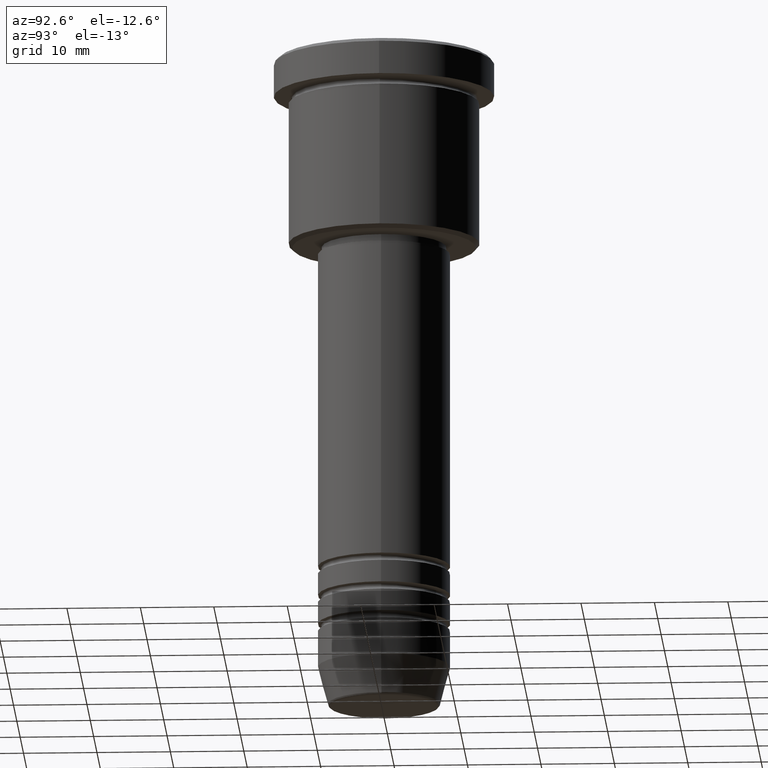
[diagram: clean part render]
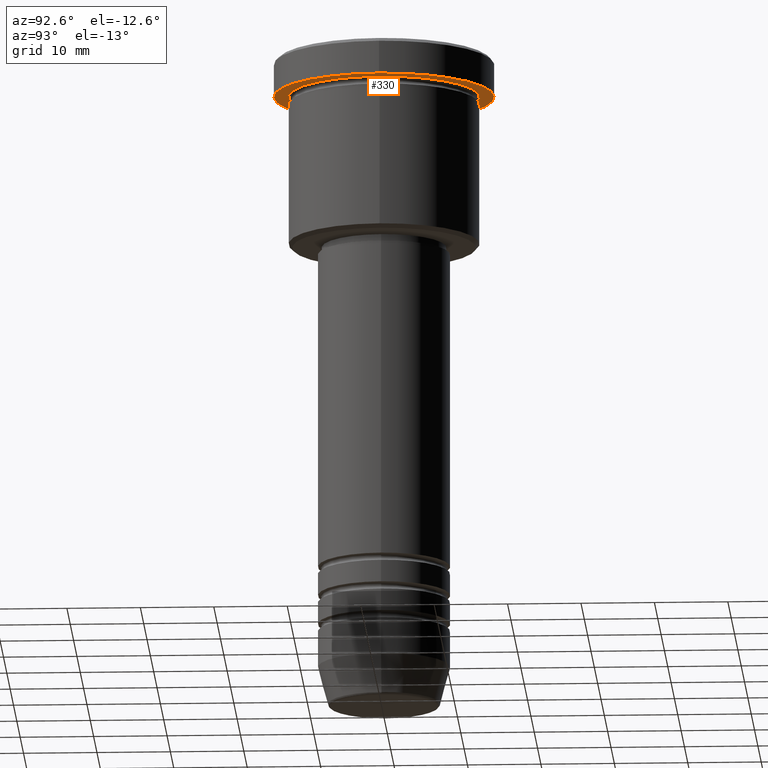
[diagram: same view with one face highlighted and labeled with its STEP entity id]
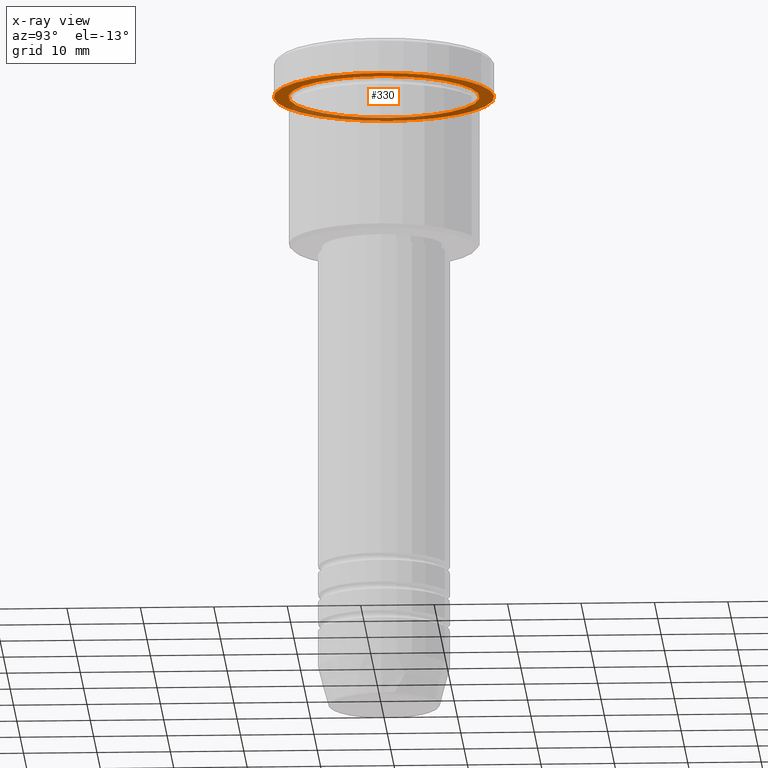
[diagram: x-ray of the same camera — body ghosted, the highlighted face saturated]
A machine part, auxiliary view. The second image highlights one B-rep face of the part: STEP entity #330.
The next image is the same camera in x-ray: the body ghosted, the highlighted face saturated — about 35% of this face is hidden behind the body in this view.
In plain terms, the highlighted planar face has unit normal (0, 0, -1).
Its self-contained STEP definition (entity closure, byte-faithful):
#42 = DIRECTION ( 'NONE',  ( 0.000000000000000000, 0.000000000000000000, -1.000000000000000000 ) ) ;
#73 = EDGE_LOOP ( 'NONE', ( #696, #528 ) ) ;
#88 = CARTESIAN_POINT ( 'NONE',  ( 0.000000000000000000, 0.000000000000000000, -4.999999999999999112 ) ) ;
#109 = EDGE_CURVE ( 'NONE', #394, #422, #911, .T. ) ;
#117 = ORIENTED_EDGE ( 'NONE', *, *, #832, .T. ) ;
#139 = CIRCLE ( 'NONE', #472, 15.00000000000000000 ) ;
#152 = DIRECTION ( 'NONE',  ( -0.000000000000000000, -0.000000000000000000, 1.000000000000000000 ) ) ;
#187 = ORIENTED_EDGE ( 'NONE', *, *, #109, .T. ) ;
#210 = CARTESIAN_POINT ( 'NONE',  ( 15.00000000000000000, 0.000000000000000000, -4.999999999999999112 ) ) ;
#211 = AXIS2_PLACEMENT_3D ( 'NONE', #1020, #42, #497 ) ;
#227 = EDGE_CURVE ( 'NONE', #284, #916, #547, .T. ) ;
#254 = CARTESIAN_POINT ( 'NONE',  ( 0.000000000000000000, 0.000000000000000000, -4.999999999999999112 ) ) ;
#266 = DIRECTION ( 'NONE',  ( 1.000000000000000000, 0.000000000000000000, 0.000000000000000000 ) ) ;
#275 = DIRECTION ( 'NONE',  ( -1.000000000000000000, 0.000000000000000000, 0.000000000000000000 ) ) ;
#284 = VERTEX_POINT ( 'NONE', #210 ) ;
#285 = DIRECTION ( 'NONE',  ( 1.000000000000000000, 0.000000000000000000, 0.000000000000000000 ) ) ;
#330 = ADVANCED_FACE ( 'NONE', ( #1043, #842 ), #404, .T. ) ;
#338 = CARTESIAN_POINT ( 'NONE',  ( -15.00000000000000000, 1.836970198721029589E-15, -4.999999999999999112 ) ) ;
#355 = CIRCLE ( 'NONE', #1026, 13.00000000000000000 ) ;
#368 = CARTESIAN_POINT ( 'NONE',  ( 0.000000000000000000, 0.000000000000000000, -4.999999999999999112 ) ) ;
#374 = DIRECTION ( 'NONE',  ( -0.000000000000000000, -0.000000000000000000, 1.000000000000000000 ) ) ;
#394 = VERTEX_POINT ( 'NONE', #608 ) ;
#403 = DIRECTION ( 'NONE',  ( -1.000000000000000000, 0.000000000000000000, 0.000000000000000000 ) ) ;
#404 = PLANE ( 'NONE',  #211 ) ;
#416 = AXIS2_PLACEMENT_3D ( 'NONE', #627, #725, #285 ) ;
#422 = VERTEX_POINT ( 'NONE', #1069 ) ;
#472 = AXIS2_PLACEMENT_3D ( 'NONE', #88, #519, #266 ) ;
#497 = DIRECTION ( 'NONE',  ( -1.000000000000000000, 0.000000000000000000, -0.000000000000000000 ) ) ;
#519 = DIRECTION ( 'NONE',  ( -0.000000000000000000, -0.000000000000000000, 1.000000000000000000 ) ) ;
#528 = ORIENTED_EDGE ( 'NONE', *, *, #1056, .F. ) ;
#547 = CIRCLE ( 'NONE', #416, 15.00000000000000000 ) ;
#608 = CARTESIAN_POINT ( 'NONE',  ( -13.00000000000000000, 0.000000000000000000, -4.999999999999999112 ) ) ;
#627 = CARTESIAN_POINT ( 'NONE',  ( 0.000000000000000000, 0.000000000000000000, -4.999999999999999112 ) ) ;
#696 = ORIENTED_EDGE ( 'NONE', *, *, #227, .F. ) ;
#725 = DIRECTION ( 'NONE',  ( -0.000000000000000000, -0.000000000000000000, 1.000000000000000000 ) ) ;
#832 = EDGE_CURVE ( 'NONE', #422, #394, #355, .T. ) ;
#842 = FACE_OUTER_BOUND ( 'NONE', #73, .T. ) ;
#911 = CIRCLE ( 'NONE', #969, 13.00000000000000000 ) ;
#916 = VERTEX_POINT ( 'NONE', #338 ) ;
#969 = AXIS2_PLACEMENT_3D ( 'NONE', #368, #374, #275 ) ;
#1020 = CARTESIAN_POINT ( 'NONE',  ( 0.000000000000000000, 15.00000000000000000, -4.999999999999999112 ) ) ;
#1026 = AXIS2_PLACEMENT_3D ( 'NONE', #254, #152, #403 ) ;
#1043 = FACE_BOUND ( 'NONE', #1102, .T. ) ;
#1056 = EDGE_CURVE ( 'NONE', #916, #284, #139, .T. ) ;
#1069 = CARTESIAN_POINT ( 'NONE',  ( 13.00000000000000000, 1.592040838891559095E-15, -4.999999999999999112 ) ) ;
#1102 = EDGE_LOOP ( 'NONE', ( #187, #117 ) ) ;